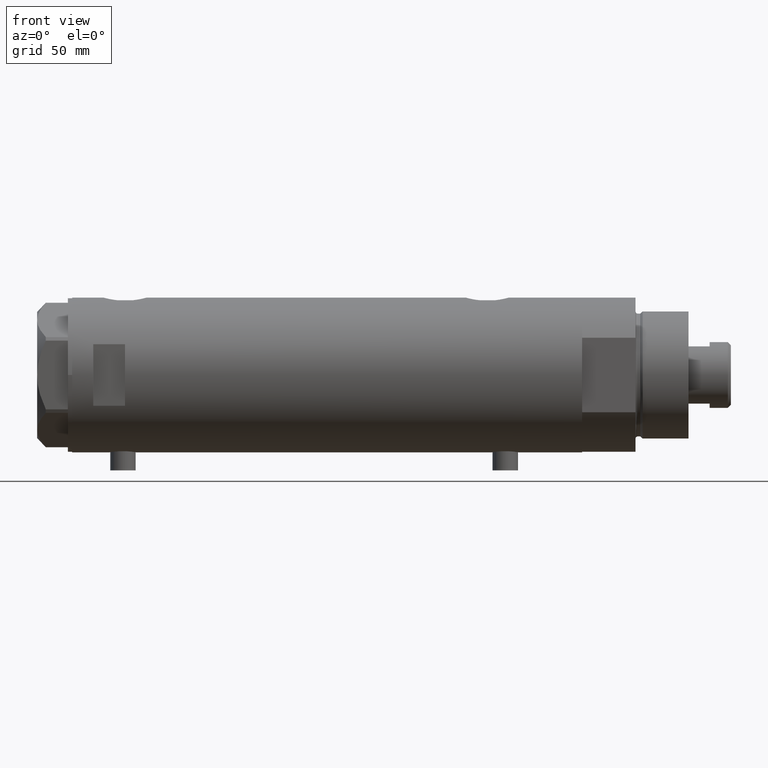
[diagram: clean part render]
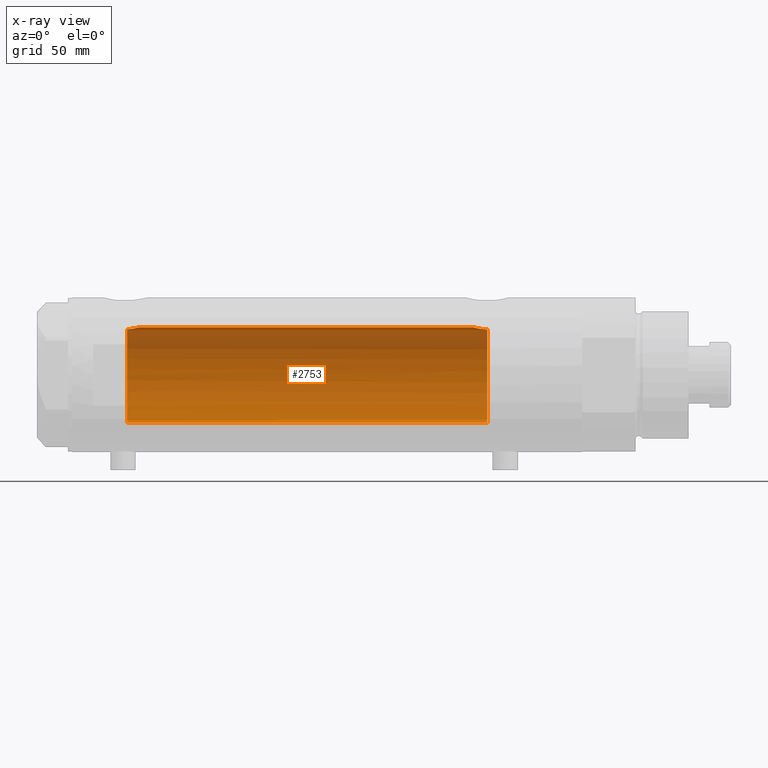
[diagram: x-ray — body ghosted, one internal face saturated and labeled with its STEP entity id]
A machine part, front view, then the same camera in x-ray: the body is ghosted and one INTERNAL B-rep face — a face not visible from any outside direction — is saturated and labeled: STEP entity #2753.
In plain terms, the highlighted cylindrical surface (partial cylindrical patch) has radius 22.5 mm, axis along (1, 0, -0).
Its self-contained STEP definition (entity closure, byte-faithful):
#13 = CARTESIAN_POINT ( 'NONE',  ( -22.49880827379606174, 0.2667964930359341125, 93.91065720946404838 ) ) ;
#29 = CARTESIAN_POINT ( 'NONE',  ( 22.30007684883240060, 3.011608117356129988, 89.53690468166831806 ) ) ;
#32 = ORIENTED_EDGE ( 'NONE', *, *, #4712, .T. ) ;
#81 = CARTESIAN_POINT ( 'NONE',  ( -22.50000000000000355, 3.061617244149333364E-16, 93.90000000000000568 ) ) ;
#171 = DIRECTION ( 'NONE',  ( -1.000000000000000000, 0.000000000000000000, 0.000000000000000000 ) ) ;
#174 = VERTEX_POINT ( 'NONE', #1964 ) ;
#199 = EDGE_CURVE ( 'NONE', #3705, #2181, #3202, .T. ) ;
#269 = AXIS2_PLACEMENT_3D ( 'NONE', #1900, #1524, #1875 ) ;
#325 = VERTEX_POINT ( 'NONE', #3991 ) ;
#330 = CARTESIAN_POINT ( 'NONE',  ( 22.25860915731085043, 3.306748059303226128, -69.89512753277104196 ) ) ;
#337 = VECTOR ( 'NONE', #1512, 1000.000000000000000 ) ;
#338 = CARTESIAN_POINT ( 'NONE',  ( 22.20005338163446496, 3.677069589895778812, 89.92964083487821370 ) ) ;
#339 = CIRCLE ( 'NONE', #269, 22.50000000000000355 ) ;
#343 = VERTEX_POINT ( 'NONE', #2173 ) ;
#426 = CARTESIAN_POINT ( 'NONE',  ( 22.14109776314136724, 4.018961829707384581, -70.37237162697964266 ) ) ;
#479 = DIRECTION ( 'NONE',  ( -0.000000000000000000, -0.000000000000000000, -1.000000000000000000 ) ) ;
#538 = CARTESIAN_POINT ( 'NONE',  ( -22.46399894542833664, 1.277836078927863550, 94.24707957770324640 ) ) ;
#612 = CARTESIAN_POINT ( 'NONE',  ( 22.03020271031500599, 4.583618747547674843, 90.66326305060307789 ) ) ;
#659 = ORIENTED_EDGE ( 'NONE', *, *, #199, .F. ) ;
#718 = CARTESIAN_POINT ( 'NONE',  ( 21.58039466125149630, 6.367443256290039599, -73.88625661091904817 ) ) ;
#763 = CARTESIAN_POINT ( 'NONE',  ( 21.55996057785741371, 6.435875139617808216, 94.01641692772588499 ) ) ;
#787 = CARTESIAN_POINT ( 'NONE',  ( 22.45973433770731376, 1.359115216171842722, 88.95894713662340791 ) ) ;
#819 = CARTESIAN_POINT ( 'NONE',  ( 22.50000000000000355, 8.058593785575293352E-16, -69.01999999999999602 ) ) ;
#881 = LINE ( 'NONE', #4146, #337 ) ;
#885 = EDGE_LOOP ( 'NONE', ( #2601, #659, #4340, #2134, #4354, #32, #977 ) ) ;
#923 = CARTESIAN_POINT ( 'NONE',  ( 21.53958216864941733, 6.503568251352485952, 94.40000000000000568 ) ) ;
#960 = VERTEX_POINT ( 'NONE', #1337 ) ;
#977 = ORIENTED_EDGE ( 'NONE', *, *, #1901, .F. ) ;
#1087 = CARTESIAN_POINT ( 'NONE',  ( 21.51635656889893156, 6.580000000000001847, -75.38312317022888465 ) ) ;
#1091 = CARTESIAN_POINT ( 'NONE',  ( 22.07793805162484091, 4.348669293362737776, -70.64321183416399208 ) ) ;
#1099 = B_SPLINE_CURVE_WITH_KNOTS ( 'NONE', 3,
 ( #819, #3937, #1376, #1400, #2163, #1324, #330, #426, #1091, #4563, #1637, #2137, #2425, #2107, #2870, #1115, #718, #2626, #2900, #2922, #1087, #3449 ),
 .UNSPECIFIED., .F., .F.,
 ( 4, 2, 2, 2, 2, 2, 2, 2, 2, 2, 4 ),
 ( 0.02068572879290662969, 0.02197833177876011915, 0.02327093476461360860, 0.02456353775046710153, 0.02585614073632059098, 0.02650244222924735132, 0.02714874372217410819, 0.02844134670802762888, 0.02973394969388114956, 0.03038025118680791337, 0.03102655267973467371 ),
 .UNSPECIFIED. ) ;
#1115 = CARTESIAN_POINT ( 'NONE',  ( 21.61738790272777777, 6.242481197317903074, -73.47475324290418541 ) ) ;
#1148 = CARTESIAN_POINT ( 'NONE',  ( 22.41810768969941847, 1.927264596308561284, 89.10552498238021712 ) ) ;
#1257 = AXIS2_PLACEMENT_3D ( 'NONE', #2416, #3871, #171 ) ;
#1272 = VERTEX_POINT ( 'NONE', #3069 ) ;
#1324 = CARTESIAN_POINT ( 'NONE',  ( 22.31307373663816662, 2.921646833104070140, -69.68858613169777527 ) ) ;
#1326 = EDGE_CURVE ( 'NONE', #1272, #325, #2782, .T. ) ;
#1337 = CARTESIAN_POINT ( 'NONE',  ( 22.50000000000000355, 8.058593785575293352E-16, -69.01999999999999602 ) ) ;
#1376 = CARTESIAN_POINT ( 'NONE',  ( 22.48752745446833146, 0.8626660575027231825, -69.06226479722903377 ) ) ;
#1400 = CARTESIAN_POINT ( 'NONE',  ( 22.43846943857365517, 1.717024460055897039, -69.23305400432137446 ) ) ;
#1512 = DIRECTION ( 'NONE',  ( -0.000000000000000000, -0.000000000000000000, -1.000000000000000000 ) ) ;
#1524 = DIRECTION ( 'NONE',  ( 0.000000000000000000, 0.000000000000000000, -1.000000000000000000 ) ) ;
#1604 = CARTESIAN_POINT ( 'NONE',  ( 0.000000000000000000, 0.000000000000000000, 94.40000000000000568 ) ) ;
#1637 = CARTESIAN_POINT ( 'NONE',  ( 21.94924653817634663, 4.949760619110004534, -71.25922104935665402 ) ) ;
#1835 = CARTESIAN_POINT ( 'NONE',  ( 22.34487948028763427, 2.662928462767977233, 89.37031008565887191 ) ) ;
#1875 = DIRECTION ( 'NONE',  ( -1.000000000000000000, 0.000000000000000000, 0.000000000000000000 ) ) ;
#1900 = CARTESIAN_POINT ( 'NONE',  ( 0.000000000000000000, 0.000000000000000000, -75.59999999999999432 ) ) ;
#1901 = EDGE_CURVE ( 'NONE', #960, #343, #1099, .T. ) ;
#1928 = CARTESIAN_POINT ( 'NONE',  ( -22.50000000000000355, 0.000000000000000000, 120.4000000000000057 ) ) ;
#1964 = CARTESIAN_POINT ( 'NONE',  ( -22.50000000000000355, 0.000000000000000000, -75.59999999999999432 ) ) ;
#2107 = CARTESIAN_POINT ( 'NONE',  ( 21.76592257976932743, 5.705656113855375189, -72.29484284637811697 ) ) ;
#2134 = ORIENTED_EDGE ( 'NONE', *, *, #1326, .F. ) ;
#2137 = CARTESIAN_POINT ( 'NONE',  ( 21.88602906110443058, 5.222191658358653399, -71.59110908501990878 ) ) ;
#2163 = CARTESIAN_POINT ( 'NONE',  ( 22.40265168709897026, 2.128491761919766301, -69.35897789146818582 ) ) ;
#2173 = CARTESIAN_POINT ( 'NONE',  ( 21.51635656889892800, 6.580000000000002736, -75.59999999999999432 ) ) ;
#2181 = VERTEX_POINT ( 'NONE', #3450 ) ;
#2193 = CARTESIAN_POINT ( 'NONE',  ( 22.14421896774458531, 3.996618394220595061, 90.15850411031067324 ) ) ;
#2236 = CARTESIAN_POINT ( 'NONE',  ( -22.50000000000000711, 0.1337051520153770823, 93.89999999999999147 ) ) ;
#2270 = CARTESIAN_POINT ( 'NONE',  ( 21.85834467356398747, 5.340944334976046370, 91.53736885285054825 ) ) ;
#2416 = CARTESIAN_POINT ( 'NONE',  ( 0.000000000000000000, 0.000000000000000000, 120.4000000000000057 ) ) ;
#2425 = CARTESIAN_POINT ( 'NONE',  ( 21.85514244747244561, 5.349553529053608258, -71.76278474480278646 ) ) ;
#2567 = CARTESIAN_POINT ( 'NONE',  ( 21.54850992350584704, 6.473999851071387646, 94.20769989068857342 ) ) ;
#2601 = ORIENTED_EDGE ( 'NONE', *, *, #4370, .F. ) ;
#2626 = CARTESIAN_POINT ( 'NONE',  ( 21.54248662244913604, 6.494090541481658541, -74.51861175082140676 ) ) ;
#2637 = CARTESIAN_POINT ( 'NONE',  ( 21.65875036540690601, 6.096384986856001831, 92.89350157007415021 ) ) ;
#2753 = ADVANCED_FACE ( 'NONE', ( #3517 ), #3896, .F. ) ;
#2754 = CARTESIAN_POINT ( 'NONE',  ( -22.47624011997706361, 1.040549726802363795, 94.12289928738239553 ) ) ;
#2782 = B_SPLINE_CURVE_WITH_KNOTS ( 'NONE', 3,
 ( #81, #2236, #13, #4448, #3804, #3468, #2754, #538, #3492, #3135 ),
 .UNSPECIFIED., .F., .F.,
 ( 4, 2, 2, 2, 4 ),
 ( 0.007822175643245100202, 0.008222643399515457141, 0.008623111155785812346, 0.009023578912056167550, 0.009424046668326524490 ),
 .UNSPECIFIED. ) ;
#2870 = CARTESIAN_POINT ( 'NONE',  ( 21.71097692913351906, 5.908765693315412904, -72.67224774632268236 ) ) ;
#2891 = CIRCLE ( 'NONE', #4282, 22.50000000000000355 ) ;
#2900 = CARTESIAN_POINT ( 'NONE',  ( 21.53277870401796434, 6.526097350343576409, -74.73193080670431243 ) ) ;
#2922 = CARTESIAN_POINT ( 'NONE',  ( 21.51969523957628283, 6.569111213712935715, -75.16380209493694053 ) ) ;
#2956 = CARTESIAN_POINT ( 'NONE',  ( 21.70300828301578733, 5.938634204148080187, 92.54008341356920653 ) ) ;
#3069 = CARTESIAN_POINT ( 'NONE',  ( -22.50000000000000355, 3.061617244149333364E-16, 93.90000000000000568 ) ) ;
#3073 = DIRECTION ( 'NONE',  ( 1.000000000000000000, 0.000000000000000000, 0.000000000000000000 ) ) ;
#3135 = CARTESIAN_POINT ( 'NONE',  ( -22.44994432064364887, 1.499999999999989564, 94.40000000000000568 ) ) ;
#3167 = EDGE_CURVE ( 'NONE', #1272, #174, #3790, .T. ) ;
#3183 = CARTESIAN_POINT ( 'NONE',  ( 21.58771824211647683, 6.342145538420568052, 93.63591924784435605 ) ) ;
#3202 = B_SPLINE_CURVE_WITH_KNOTS ( 'NONE', 3,
 ( #4041, #2567, #763, #3183, #4381, #2637, #2956, #4432, #2270, #3691, #612, #2193, #338, #29, #1835, #4648, #1148, #4301, #787, #3294, #3670, #4403 ),
 .UNSPECIFIED., .F., .F.,
 ( 4, 2, 2, 2, 2, 2, 2, 2, 2, 2, 4 ),
 ( 0.03202894702871425525, 0.03261250414633488220, 0.03319606126395550916, 0.03436317549919672837, 0.03553028973443794758, 0.03669740396967915985, 0.03786451820492037906, 0.03903163244016159827, 0.03961518955778220441, 0.04019874667540280361, 0.04136586091064399506 ),
 .UNSPECIFIED. ) ;
#3294 = CARTESIAN_POINT ( 'NONE',  ( 22.48961798642638144, 0.7839168256130889523, 88.85525408827135152 ) ) ;
#3333 = EDGE_CURVE ( 'NONE', #3705, #325, #2891, .T. ) ;
#3449 = CARTESIAN_POINT ( 'NONE',  ( 21.51635656889892800, 6.580000000000002736, -75.59999999999999432 ) ) ;
#3450 = CARTESIAN_POINT ( 'NONE',  ( 22.50000000000000355, 0.000000000000000000, 88.82000000000000739 ) ) ;
#3468 = CARTESIAN_POINT ( 'NONE',  ( -22.48163274036980397, 0.9177758873189107991, 94.07071222075917660 ) ) ;
#3492 = CARTESIAN_POINT ( 'NONE',  ( -22.45709582300228746, 1.392966113493022462, 94.31972458511978630 ) ) ;
#3517 = FACE_OUTER_BOUND ( 'NONE', #885, .T. ) ;
#3670 = CARTESIAN_POINT ( 'NONE',  ( 22.50000000000000000, 0.3947970979781452727, 88.81999999999999318 ) ) ;
#3691 = CARTESIAN_POINT ( 'NONE',  ( 21.97198143592079234, 4.852313884858193482, 90.93898489903314442 ) ) ;
#3705 = VERTEX_POINT ( 'NONE', #923 ) ;
#3790 = LINE ( 'NONE', #1928, #4430 ) ;
#3804 = CARTESIAN_POINT ( 'NONE',  ( -22.49055927180484105, 0.6639780822022010032, 93.98607637978751939 ) ) ;
#3871 = DIRECTION ( 'NONE',  ( -0.000000000000000000, -0.000000000000000000, -1.000000000000000000 ) ) ;
#3896 = CYLINDRICAL_SURFACE ( 'NONE', #1257, 22.50000000000000355 ) ;
#3937 = CARTESIAN_POINT ( 'NONE',  ( 22.50000000000000711, 0.4308769323960456310, -69.02000000000001023 ) ) ;
#3991 = CARTESIAN_POINT ( 'NONE',  ( -22.44994432064364887, 1.499999999999989564, 94.40000000000000568 ) ) ;
#4041 = CARTESIAN_POINT ( 'NONE',  ( 21.53958216864941733, 6.503568251352485952, 94.40000000000000568 ) ) ;
#4146 = CARTESIAN_POINT ( 'NONE',  ( 22.50000000000000355, 2.755455298081545172E-15, 120.4000000000000057 ) ) ;
#4282 = AXIS2_PLACEMENT_3D ( 'NONE', #1604, #4597, #3073 ) ;
#4301 = CARTESIAN_POINT ( 'NONE',  ( 22.44738562510071489, 1.549445000368397940, 89.00203276325541424 ) ) ;
#4340 = ORIENTED_EDGE ( 'NONE', *, *, #3333, .T. ) ;
#4354 = ORIENTED_EDGE ( 'NONE', *, *, #3167, .T. ) ;
#4370 = EDGE_CURVE ( 'NONE', #2181, #960, #881, .T. ) ;
#4381 = CARTESIAN_POINT ( 'NONE',  ( 21.60406082673097572, 6.286405977953737789, 93.44666670735806235 ) ) ;
#4403 = CARTESIAN_POINT ( 'NONE',  ( 22.50000000000000355, 0.000000000000000000, 88.82000000000000739 ) ) ;
#4430 = VECTOR ( 'NONE', #479, 1000.000000000000000 ) ;
#4432 = CARTESIAN_POINT ( 'NONE',  ( 21.80257506594836414, 5.561983929949493088, 91.86293428743495326 ) ) ;
#4448 = CARTESIAN_POINT ( 'NONE',  ( -22.49410607591505240, 0.5317386154976213586, 93.95352050033554292 ) ) ;
#4563 = CARTESIAN_POINT ( 'NONE',  ( 21.98170506496023791, 4.804030677015548534, -71.09847163284564431 ) ) ;
#4597 = DIRECTION ( 'NONE',  ( 0.000000000000000000, 0.000000000000000000, 1.000000000000000000 ) ) ;
#4648 = CARTESIAN_POINT ( 'NONE',  ( 22.40112435233284671, 2.115025885874704414, 89.16613662186026090 ) ) ;
#4712 = EDGE_CURVE ( 'NONE', #174, #343, #339, .T. ) ;